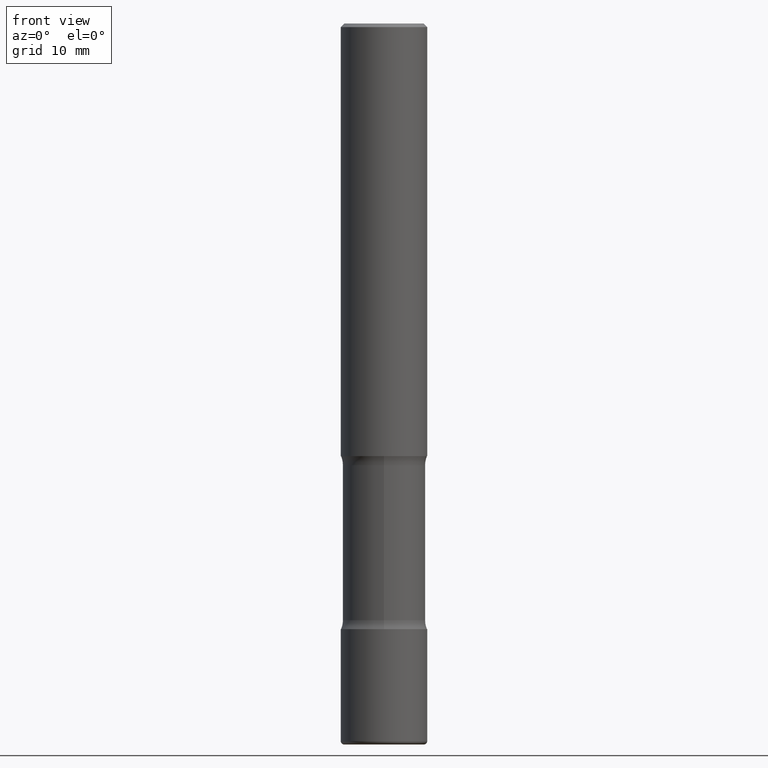
[diagram: clean part render]
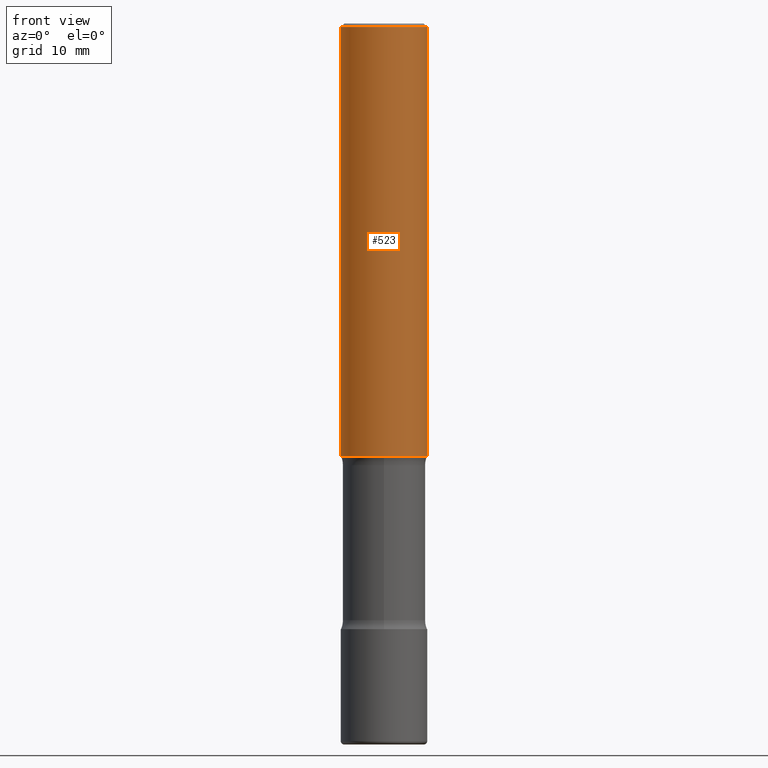
[diagram: same view with one face highlighted and labeled with its STEP entity id]
A machine part, front view. The second image highlights one B-rep face of the part: STEP entity #523.
In plain terms, the highlighted cylindrical surface (partial cylindrical patch) has radius 5.9995 mm, axis along (-0, 0, 1).
Its self-contained STEP definition (entity closure, byte-faithful):
#22 = LINE ( 'NONE', #188, #184 ) ;
#24 = CARTESIAN_POINT ( 'NONE',  ( -0.2362000000000001598, -2.480401480830709941E-15, -2.362200000000000077 ) ) ;
#36 = VERTEX_POINT ( 'NONE', #24 ) ;
#82 = EDGE_CURVE ( 'NONE', #392, #512, #288, .T. ) ;
#111 = ORIENTED_EDGE ( 'NONE', *, *, #462, .T. ) ;
#120 = DIRECTION ( 'NONE',  ( -2.445468806185136597E-29, 3.491481338843145583E-15, 1.000000000000000000 ) ) ;
#122 = CARTESIAN_POINT ( 'NONE',  ( 0.2361999999999998545, -1.690279253850497785E-15, -0.02000000000000006981 ) ) ;
#128 = ORIENTED_EDGE ( 'NONE', *, *, #82, .F. ) ;
#149 = CARTESIAN_POINT ( 'NONE',  ( 0.2362000000000001598, -9.896953003084776152E-15, -2.362200000000000077 ) ) ;
#151 = AXIS2_PLACEMENT_3D ( 'NONE', #190, #155, #495 ) ;
#152 = AXIS2_PLACEMENT_3D ( 'NONE', #203, #120, #193 ) ;
#155 = DIRECTION ( 'NONE',  ( -2.445468806185136597E-29, 3.491481338843145583E-15, 1.000000000000000000 ) ) ;
#157 = DIRECTION ( 'NONE',  ( -2.445468806185136597E-29, 3.491481338843145583E-15, 1.000000000000000000 ) ) ;
#181 = EDGE_CURVE ( 'NONE', #433, #512, #22, .T. ) ;
#184 = VECTOR ( 'NONE', #537, 39.37007874015748143 ) ;
#188 = CARTESIAN_POINT ( 'NONE',  ( 0.2361999999999999933, -1.649375784469496131E-15, 1.151752954443000088E-29 ) ) ;
#190 = CARTESIAN_POINT ( 'NONE',  ( 4.890937612370289799E-31, -6.982962677686315028E-17, -0.02000000000000006981 ) ) ;
#193 = DIRECTION ( 'NONE',  ( 1.000000000000000000, -6.982962677686266711E-15, 4.876176775795936353E-29 ) ) ;
#203 = CARTESIAN_POINT ( 'NONE',  ( 0.000000000000000000, 0.000000000000000000, 0.000000000000000000 ) ) ;
#206 = DIRECTION ( 'NONE',  ( 1.000000000000000000, -6.982962677686268288E-15, 0.000000000000000000 ) ) ;
#225 = CARTESIAN_POINT ( 'NONE',  ( -0.2361999999999998545, 1.579546157692632044E-15, -0.02000000000000006981 ) ) ;
#253 = VECTOR ( 'NONE', #499, 39.37007874015748143 ) ;
#254 = EDGE_LOOP ( 'NONE', ( #381, #111, #331, #128 ) ) ;
#288 = CIRCLE ( 'NONE', #151, 0.2361999999999998545 ) ;
#289 = AXIS2_PLACEMENT_3D ( 'NONE', #367, #157, #206 ) ;
#329 = CARTESIAN_POINT ( 'NONE',  ( -0.2361999999999999933, 1.678301941865356591E-15, -1.161852468318208757E-29 ) ) ;
#331 = ORIENTED_EDGE ( 'NONE', *, *, #181, .T. ) ;
#367 = CARTESIAN_POINT ( 'NONE',  ( 5.776686413970529753E-29, -8.247577218615279626E-15, -2.362200000000000077 ) ) ;
#374 = LINE ( 'NONE', #329, #253 ) ;
#381 = ORIENTED_EDGE ( 'NONE', *, *, #483, .F. ) ;
#392 = VERTEX_POINT ( 'NONE', #225 ) ;
#433 = VERTEX_POINT ( 'NONE', #149 ) ;
#456 = FACE_OUTER_BOUND ( 'NONE', #254, .T. ) ;
#462 = EDGE_CURVE ( 'NONE', #36, #433, #534, .T. ) ;
#465 = CYLINDRICAL_SURFACE ( 'NONE', #152, 0.2361999999999999933 ) ;
#483 = EDGE_CURVE ( 'NONE', #36, #392, #374, .T. ) ;
#495 = DIRECTION ( 'NONE',  ( 1.000000000000000000, -6.982962677686266711E-15, 0.000000000000000000 ) ) ;
#499 = DIRECTION ( 'NONE',  ( -2.445468806185136877E-29, 3.491481338843145188E-15, 1.000000000000000000 ) ) ;
#512 = VERTEX_POINT ( 'NONE', #122 ) ;
#523 = ADVANCED_FACE ( 'NONE', ( #456 ), #465, .T. ) ;
#534 = CIRCLE ( 'NONE', #289, 0.2362000000000001598 ) ;
#537 = DIRECTION ( 'NONE',  ( -2.445468806185136877E-29, 3.491481338843145188E-15, 1.000000000000000000 ) ) ;